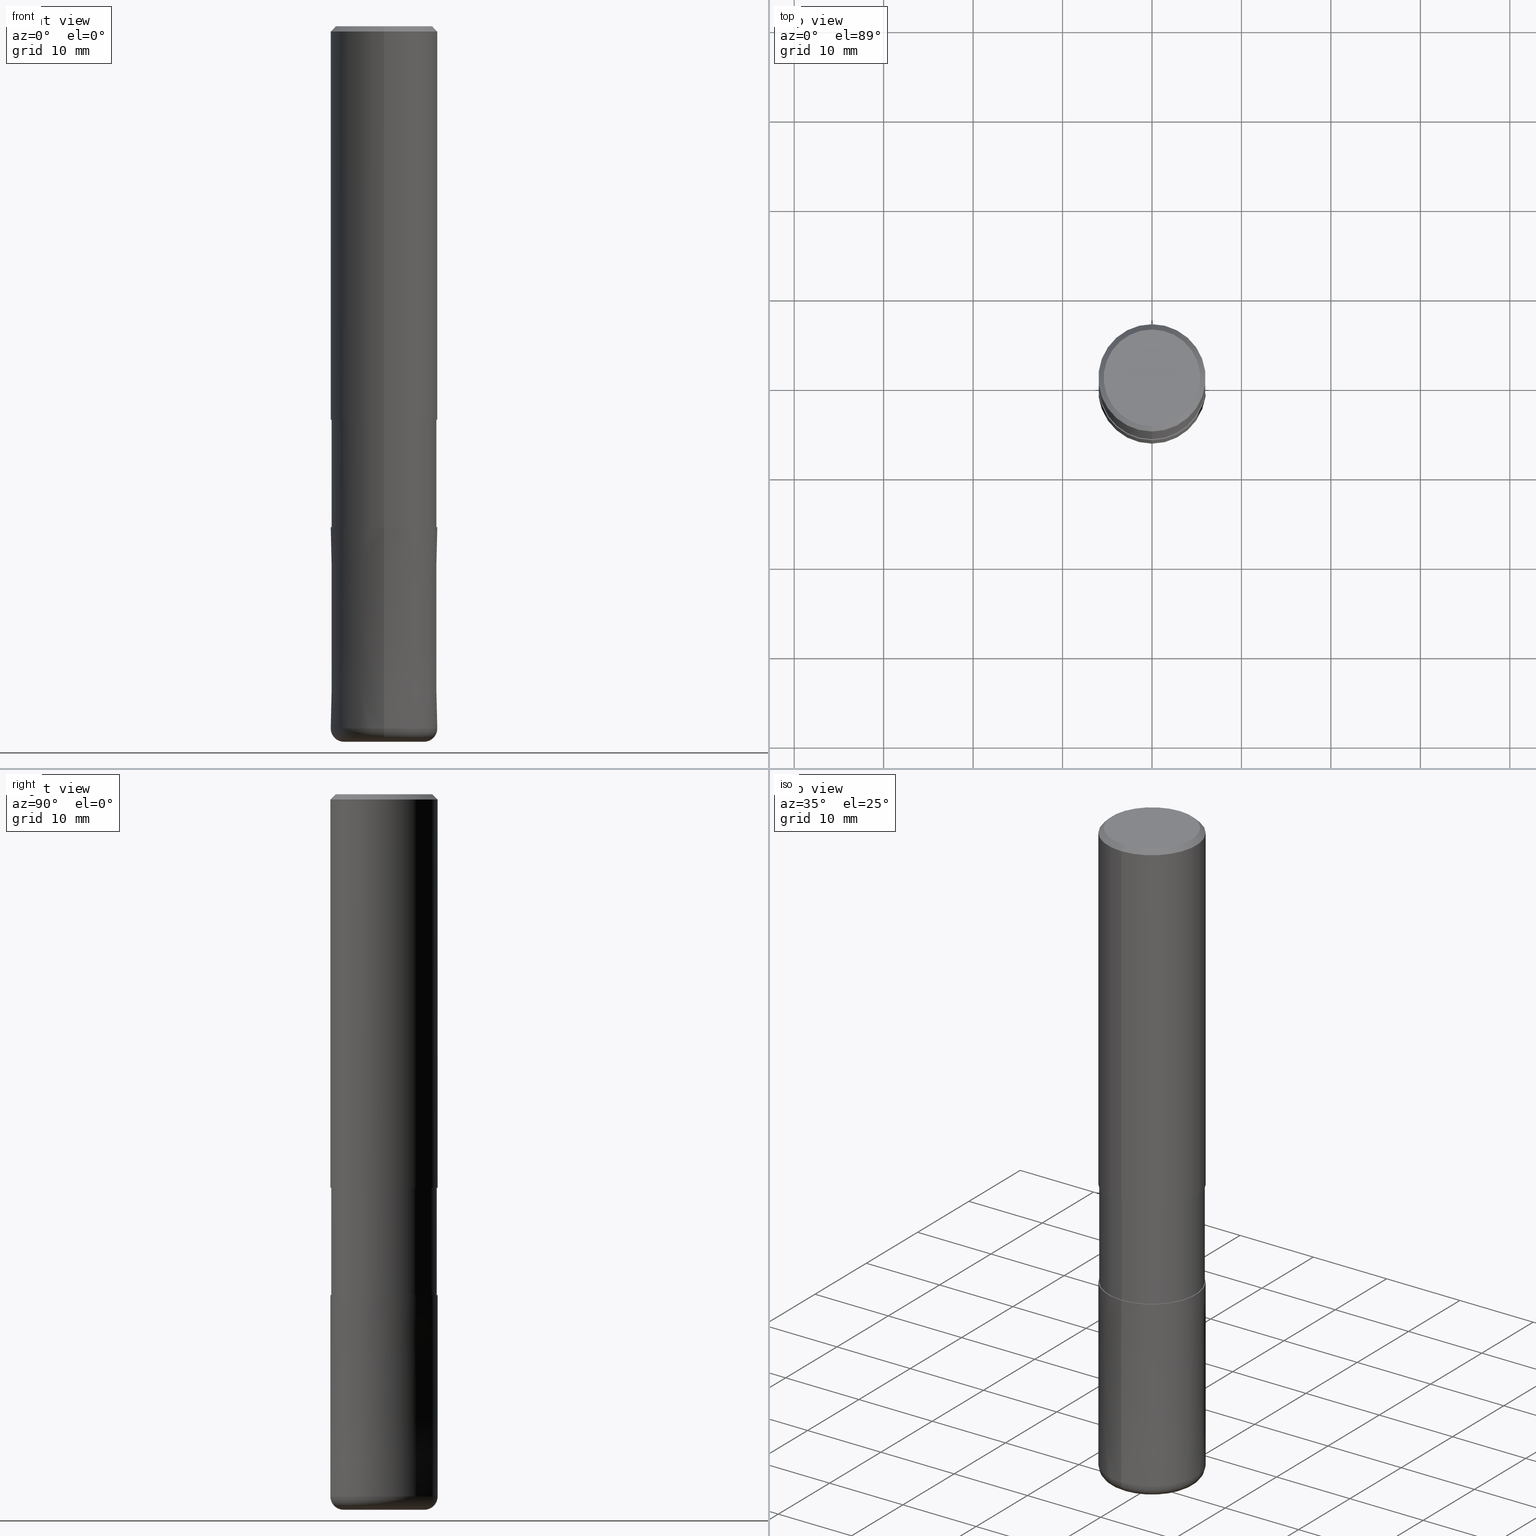
[diagram: canonical four-view strip — front | top / right | iso, engineering-drawing reading convention]
A machine part, canonical four-view strip (front | top / right | iso — engineering-drawing reading convention). The complete STEP part file that produces these views, byte-faithful:
ISO-10303-21;
HEADER;
FILE_DESCRIPTION(('no description'),'unknown implementation level');
FILE_NAME('CXLRS5120-15-36-Huellk.stp','  ',('CIMSOURCE GmbH'),('CADClick - KiM GmbH - www.kimweb.de'),'unknown preprocess','ACIS','unknown authorization');
FILE_SCHEMA(('automotive_design'));
ENDSEC;
DATA;
#1=MECHANICAL_DESIGN_GEOMETRIC_PRESENTATION_REPRESENTATION(' ',(#14,#15,#16,#17,#18,#19,#20,#21,#22,#23,#24,#25,#26,#27,#28,#29,#30,#31,#32,#33,#34,#35,#36,#37,#38,#39,#40,#41,#42,#43,#44,#45,#46,#47,#48,#49,#50,#51,#52,#53,#54,#55,#56,#57,#58,#59,#60,#61,#62,#63,#64,#65,#66,#67,#68,#69,#70,#71,#72,#73,#74,#75,#76,#77,#78,#79,#80,#81,#82,#83,#84,#85,#86,#87,#88,#89,#90,#91,#92,#93,#94,#95,#96,#97),#10);
#2=PRODUCT_DEFINITION_CONTEXT('',#98,'design');
#3=APPLICATION_PROTOCOL_DEFINITION('INTERNATIONAL STANDARD','automotive_design',1994,#98);
#4=PRODUCT_CATEGORY_RELATIONSHIP('NONE','NONE',#99,#100);
#5=SHAPE_DEFINITION_REPRESENTATION(#101,#102);
#6=PRODUCT_DEFINITION_CONTEXT('',#103,'design');
#7=APPLICATION_PROTOCOL_DEFINITION('INTERNATIONAL STANDARD','automotive_design',1994,#103);
#8=PRODUCT_CATEGORY_RELATIONSHIP('NONE','NONE',#104,#105);
#9=SHAPE_DEFINITION_REPRESENTATION(#106,#107);
#10= (GEOMETRIC_REPRESENTATION_CONTEXT(3)GLOBAL_UNCERTAINTY_ASSIGNED_CONTEXT((#110))GLOBAL_UNIT_ASSIGNED_CONTEXT((#112,#113,#114))REPRESENTATION_CONTEXT('NONE','WORKSPACE'));
#14=STYLED_ITEM('',(#116),#117);
#15=STYLED_ITEM('',(#118),#119);
#16=STYLED_ITEM('',(#120),#121);
#17=STYLED_ITEM('',(#122),#123);
#18=STYLED_ITEM('',(#124),#125);
#19=STYLED_ITEM('',(#126),#127);
#20=STYLED_ITEM('',(#128),#129);
#21=STYLED_ITEM('',(#130),#131);
#22=STYLED_ITEM('',(#132),#133);
#23=STYLED_ITEM('',(#134),#135);
#24=STYLED_ITEM('',(#136),#137);
#25=STYLED_ITEM('',(#138),#139);
#26=STYLED_ITEM('',(#140),#141);
#27=STYLED_ITEM('',(#142),#143);
#28=STYLED_ITEM('',(#144),#145);
#29=STYLED_ITEM('',(#146),#147);
#30=STYLED_ITEM('',(#148),#149);
#31=STYLED_ITEM('',(#150),#151);
#32=STYLED_ITEM('',(#152),#153);
#33=STYLED_ITEM('',(#154),#155);
#34=STYLED_ITEM('',(#156),#157);
#35=STYLED_ITEM('',(#158),#159);
#36=STYLED_ITEM('',(#160),#161);
#37=STYLED_ITEM('',(#162),#163);
#38=STYLED_ITEM('',(#164),#165);
#39=STYLED_ITEM('',(#166),#167);
#40=STYLED_ITEM('',(#168),#169);
#41=STYLED_ITEM('',(#170),#171);
#42=STYLED_ITEM('',(#172),#173);
#43=STYLED_ITEM('',(#174),#175);
#44=STYLED_ITEM('',(#176),#177);
#45=STYLED_ITEM('',(#178),#179);
#46=STYLED_ITEM('',(#180),#181);
#47=STYLED_ITEM('',(#182),#183);
#48=STYLED_ITEM('',(#184),#185);
#49=STYLED_ITEM('',(#186),#187);
#50=STYLED_ITEM('',(#188),#189);
#51=STYLED_ITEM('',(#190),#191);
#52=STYLED_ITEM('',(#192),#193);
#53=STYLED_ITEM('',(#194),#195);
#54=STYLED_ITEM('',(#196),#197);
#55=STYLED_ITEM('',(#198),#199);
#56=STYLED_ITEM('',(#200),#201);
#57=STYLED_ITEM('',(#202),#203);
#58=STYLED_ITEM('',(#204),#205);
#59=STYLED_ITEM('',(#206),#207);
#60=STYLED_ITEM('',(#208),#209);
#61=STYLED_ITEM('',(#210),#211);
#62=STYLED_ITEM('',(#212),#213);
#63=STYLED_ITEM('',(#214),#215);
#64=STYLED_ITEM('',(#216),#217);
#65=STYLED_ITEM('',(#218),#219);
#66=STYLED_ITEM('',(#220),#221);
#67=STYLED_ITEM('',(#222),#223);
#68=STYLED_ITEM('',(#224),#225);
#69=STYLED_ITEM('',(#226),#227);
#70=STYLED_ITEM('',(#228),#229);
#71=STYLED_ITEM('',(#230),#231);
#72=STYLED_ITEM('',(#232),#233);
#73=STYLED_ITEM('',(#234),#235);
#74=STYLED_ITEM('',(#236),#237);
#75=STYLED_ITEM('',(#238),#239);
#76=STYLED_ITEM('',(#240),#241);
#77=STYLED_ITEM('',(#242),#243);
#78=STYLED_ITEM('',(#244),#245);
#79=STYLED_ITEM('',(#246),#247);
#80=STYLED_ITEM('',(#248),#249);
#81=STYLED_ITEM('',(#250),#251);
#82=STYLED_ITEM('',(#252),#253);
#83=STYLED_ITEM('',(#254),#255);
#84=STYLED_ITEM('',(#256),#257);
#85=STYLED_ITEM('',(#258),#259);
#86=STYLED_ITEM('',(#260),#261);
#87=STYLED_ITEM('',(#262),#263);
#88=STYLED_ITEM('',(#264),#265);
#89=STYLED_ITEM('',(#266),#267);
#90=STYLED_ITEM('',(#268),#269);
#91=STYLED_ITEM('',(#270),#271);
#92=STYLED_ITEM('',(#272),#273);
#93=STYLED_ITEM('',(#274),#275);
#94=STYLED_ITEM('',(#276),#277);
#95=STYLED_ITEM('',(#278),#279);
#96=STYLED_ITEM('',(#280),#281);
#97=STYLED_ITEM('',(#282),#283);
#98=APPLICATION_CONTEXT(' ');
#99=PRODUCT_CATEGORY('part','NONE');
#100=PRODUCT_RELATED_PRODUCT_CATEGORY('detail',' ',(#284));
#101=PRODUCT_DEFINITION_SHAPE('NONE','NONE',#285);
#102=ADVANCED_BREP_SHAPE_REPRESENTATION('1',(#245,#286),#10);
#103=APPLICATION_CONTEXT(' ');
#104=PRODUCT_CATEGORY('part','NONE');
#105=PRODUCT_RELATED_PRODUCT_CATEGORY('detail',' ',(#287));
#106=PRODUCT_DEFINITION_SHAPE('NONE','NONE',#288);
#107=ADVANCED_BREP_SHAPE_REPRESENTATION('2',(#119,#289),#10);
#110=UNCERTAINTY_MEASURE_WITH_UNIT(LENGTH_MEASURE(1.0E-006),#112,'','');
#112= (CONVERSION_BASED_UNIT('MILLIMETRE',#292)LENGTH_UNIT()NAMED_UNIT(#295));
#113= (NAMED_UNIT(#297)PLANE_ANGLE_UNIT()SI_UNIT($,.RADIAN.));
#114= (NAMED_UNIT(#297)SOLID_ANGLE_UNIT()SI_UNIT($,.STERADIAN.));
#116=PRESENTATION_STYLE_ASSIGNMENT((#303));
#117=EDGE_CURVE('',#151,#259,#304,.T.);
#118=PRESENTATION_STYLE_ASSIGNMENT((#305));
#119=MANIFOLD_SOLID_BREP('2',#306);
#120=PRESENTATION_STYLE_ASSIGNMENT((#307));
#121=ADVANCED_FACE('',(#308),#309,.T.);
#122=PRESENTATION_STYLE_ASSIGNMENT((#310));
#123=VERTEX_POINT('',#311);
#124=PRESENTATION_STYLE_ASSIGNMENT((#312));
#125=EDGE_CURVE('',#151,#255,#313,.T.);
#126=PRESENTATION_STYLE_ASSIGNMENT((#314));
#127=ADVANCED_FACE('',(#315),#316,.T.);
#128=PRESENTATION_STYLE_ASSIGNMENT((#317));
#129=VERTEX_POINT('',#318);
#130=PRESENTATION_STYLE_ASSIGNMENT((#319));
#131=EDGE_CURVE('',#271,#241,#320,.T.);
#132=PRESENTATION_STYLE_ASSIGNMENT((#321));
#133=EDGE_CURVE('',#247,#191,#322,.T.);
#134=PRESENTATION_STYLE_ASSIGNMENT((#323));
#135=EDGE_CURVE('',#233,#129,#324,.T.);
#136=PRESENTATION_STYLE_ASSIGNMENT((#325));
#137=ADVANCED_FACE('',(#326),#327,.T.);
#138=PRESENTATION_STYLE_ASSIGNMENT((#328));
#139=VERTEX_POINT('',#329);
#140=PRESENTATION_STYLE_ASSIGNMENT((#330));
#141=EDGE_CURVE('',#231,#239,#331,.T.);
#142=PRESENTATION_STYLE_ASSIGNMENT((#332));
#143=ADVANCED_FACE('',(#333),#334,.T.);
#144=PRESENTATION_STYLE_ASSIGNMENT((#335));
#145=EDGE_CURVE('',#147,#139,#336,.T.);
#146=PRESENTATION_STYLE_ASSIGNMENT((#337));
#147=VERTEX_POINT('',#338);
#148=PRESENTATION_STYLE_ASSIGNMENT((#339));
#149=EDGE_CURVE('',#123,#147,#340,.T.);
#150=PRESENTATION_STYLE_ASSIGNMENT((#341));
#151=VERTEX_POINT('',#342);
#152=PRESENTATION_STYLE_ASSIGNMENT((#343));
#153=EDGE_CURVE('',#191,#247,#344,.T.);
#154=PRESENTATION_STYLE_ASSIGNMENT((#345));
#155=EDGE_CURVE('',#187,#189,#346,.T.);
#156=PRESENTATION_STYLE_ASSIGNMENT((#347));
#157=ADVANCED_FACE('',(#348,#349),#350,.T.);
#158=PRESENTATION_STYLE_ASSIGNMENT((#351));
#159=VERTEX_POINT('',#352);
#160=PRESENTATION_STYLE_ASSIGNMENT((#353));
#161=ADVANCED_FACE('',(#354),#355,.T.);
#162=PRESENTATION_STYLE_ASSIGNMENT((#356));
#163=ADVANCED_FACE('',(#357),#358,.T.);
#164=PRESENTATION_STYLE_ASSIGNMENT((#359));
#165=ADVANCED_FACE('',(#360),#361,.F.);
#166=PRESENTATION_STYLE_ASSIGNMENT((#362));
#167=ADVANCED_FACE('',(#363,#364),#365,.T.);
#168=PRESENTATION_STYLE_ASSIGNMENT((#366));
#169=VERTEX_POINT('',#367);
#170=PRESENTATION_STYLE_ASSIGNMENT((#368));
#171=EDGE_CURVE('',#259,#159,#369,.T.);
#172=PRESENTATION_STYLE_ASSIGNMENT((#370));
#173=ADVANCED_FACE('',(#371,#372),#373,.T.);
#174=PRESENTATION_STYLE_ASSIGNMENT((#374));
#175=EDGE_CURVE('',#147,#123,#375,.T.);
#176=PRESENTATION_STYLE_ASSIGNMENT((#376));
#177=EDGE_CURVE('',#273,#223,#377,.T.);
#178=PRESENTATION_STYLE_ASSIGNMENT((#378));
#179=EDGE_CURVE('',#233,#231,#379,.T.);
#180=PRESENTATION_STYLE_ASSIGNMENT((#380));
#181=EDGE_CURVE('',#239,#231,#381,.T.);
#182=PRESENTATION_STYLE_ASSIGNMENT((#382));
#183=EDGE_CURVE('',#223,#273,#383,.T.);
#184=PRESENTATION_STYLE_ASSIGNMENT((#384));
#185=EDGE_CURVE('',#195,#139,#385,.T.);
#186=PRESENTATION_STYLE_ASSIGNMENT((#386));
#187=VERTEX_POINT('',#387);
#188=PRESENTATION_STYLE_ASSIGNMENT((#388));
#189=VERTEX_POINT('',#389);
#190=PRESENTATION_STYLE_ASSIGNMENT((#390));
#191=VERTEX_POINT('',#391);
#192=PRESENTATION_STYLE_ASSIGNMENT((#392));
#193=EDGE_CURVE('',#241,#271,#393,.T.);
#194=PRESENTATION_STYLE_ASSIGNMENT((#394));
#195=VERTEX_POINT('',#395);
#196=PRESENTATION_STYLE_ASSIGNMENT((#396));
#197=EDGE_CURVE('',#129,#233,#397,.T.);
#198=PRESENTATION_STYLE_ASSIGNMENT((#398));
#199=ADVANCED_FACE('',(#399),#400,.T.);
#200=PRESENTATION_STYLE_ASSIGNMENT((#401));
#201=EDGE_CURVE('',#239,#129,#402,.T.);
#202=PRESENTATION_STYLE_ASSIGNMENT((#403));
#203=ADVANCED_FACE('',(#404),#405,.T.);
#204=PRESENTATION_STYLE_ASSIGNMENT((#406));
#205=ADVANCED_FACE('',(#407),#408,.F.);
#206=PRESENTATION_STYLE_ASSIGNMENT((#409));
#207=ADVANCED_FACE('',(#410),#411,.T.);
#208=PRESENTATION_STYLE_ASSIGNMENT((#412));
#209=EDGE_CURVE('',#189,#187,#413,.T.);
#210=PRESENTATION_STYLE_ASSIGNMENT((#414));
#211=EDGE_CURVE('',#189,#259,#415,.T.);
#212=PRESENTATION_STYLE_ASSIGNMENT((#416));
#213=EDGE_CURVE('',#159,#255,#417,.T.);
#214=PRESENTATION_STYLE_ASSIGNMENT((#418));
#215=VERTEX_POINT('',#419);
#216=PRESENTATION_STYLE_ASSIGNMENT((#420));
#217=ADVANCED_FACE('',(#421),#422,.T.);
#218=PRESENTATION_STYLE_ASSIGNMENT((#423));
#219=EDGE_CURVE('',#283,#249,#424,.T.);
#220=PRESENTATION_STYLE_ASSIGNMENT((#425));
#221=EDGE_CURVE('',#159,#187,#426,.T.);
#222=PRESENTATION_STYLE_ASSIGNMENT((#427));
#223=VERTEX_POINT('',#428);
#224=PRESENTATION_STYLE_ASSIGNMENT((#429));
#225=ADVANCED_FACE('',(#430),#431,.T.);
#226=PRESENTATION_STYLE_ASSIGNMENT((#432));
#227=EDGE_CURVE('',#195,#123,#433,.T.);
#228=PRESENTATION_STYLE_ASSIGNMENT((#434));
#229=EDGE_CURVE('',#159,#259,#435,.T.);
#230=PRESENTATION_STYLE_ASSIGNMENT((#436));
#231=VERTEX_POINT('',#437);
#232=PRESENTATION_STYLE_ASSIGNMENT((#438));
#233=VERTEX_POINT('',#439);
#234=PRESENTATION_STYLE_ASSIGNMENT((#440));
#235=EDGE_CURVE('',#271,#239,#441,.T.);
#236=PRESENTATION_STYLE_ASSIGNMENT((#442));
#237=EDGE_CURVE('',#169,#215,#443,.T.);
#238=PRESENTATION_STYLE_ASSIGNMENT((#444));
#239=VERTEX_POINT('',#445);
#240=PRESENTATION_STYLE_ASSIGNMENT((#446));
#241=VERTEX_POINT('',#447);
#242=PRESENTATION_STYLE_ASSIGNMENT((#448));
#243=EDGE_CURVE('',#215,#169,#449,.T.);
#244=PRESENTATION_STYLE_ASSIGNMENT((#450));
#245=MANIFOLD_SOLID_BREP('1',#451);
#246=PRESENTATION_STYLE_ASSIGNMENT((#452));
#247=VERTEX_POINT('',#453);
#248=PRESENTATION_STYLE_ASSIGNMENT((#454));
#249=VERTEX_POINT('',#455);
#250=PRESENTATION_STYLE_ASSIGNMENT((#456));
#251=EDGE_CURVE('',#215,#223,#457,.T.);
#252=PRESENTATION_STYLE_ASSIGNMENT((#458));
#253=EDGE_CURVE('',#249,#247,#459,.T.);
#254=PRESENTATION_STYLE_ASSIGNMENT((#460));
#255=VERTEX_POINT('',#461);
#256=PRESENTATION_STYLE_ASSIGNMENT((#462));
#257=EDGE_CURVE('',#139,#195,#463,.T.);
#258=PRESENTATION_STYLE_ASSIGNMENT((#464));
#259=VERTEX_POINT('',#465);
#260=PRESENTATION_STYLE_ASSIGNMENT((#466));
#261=EDGE_CURVE('',#231,#241,#467,.T.);
#262=PRESENTATION_STYLE_ASSIGNMENT((#468));
#263=ADVANCED_FACE('',(#469),#470,.T.);
#264=PRESENTATION_STYLE_ASSIGNMENT((#471));
#265=EDGE_CURVE('',#255,#151,#472,.T.);
#266=PRESENTATION_STYLE_ASSIGNMENT((#473));
#267=EDGE_CURVE('',#249,#283,#474,.T.);
#268=PRESENTATION_STYLE_ASSIGNMENT((#475));
#269=ADVANCED_FACE('',(#476),#477,.T.);
#270=PRESENTATION_STYLE_ASSIGNMENT((#478));
#271=VERTEX_POINT('',#479);
#272=PRESENTATION_STYLE_ASSIGNMENT((#480));
#273=VERTEX_POINT('',#481);
#274=PRESENTATION_STYLE_ASSIGNMENT((#482));
#275=EDGE_CURVE('',#273,#169,#483,.T.);
#276=PRESENTATION_STYLE_ASSIGNMENT((#484));
#277=ADVANCED_FACE('',(#485,#486),#487,.T.);
#278=PRESENTATION_STYLE_ASSIGNMENT((#488));
#279=EDGE_CURVE('',#191,#283,#489,.T.);
#280=PRESENTATION_STYLE_ASSIGNMENT((#490));
#281=ADVANCED_FACE('',(#491),#492,.T.);
#282=PRESENTATION_STYLE_ASSIGNMENT((#493));
#283=VERTEX_POINT('',#494);
#284=PRODUCT('1','1','PART-1-DESC',(#495));
#285=PRODUCT_DEFINITION('NONE','NONE',#496,#2);
#286=AXIS2_PLACEMENT_3D('',#497,#498,#499);
#287=PRODUCT('2','2','PART-2-DESC',(#500));
#288=PRODUCT_DEFINITION('NONE','NONE',#501,#6);
#289=AXIS2_PLACEMENT_3D('',#502,#503,#504);
#292=LENGTH_MEASURE_WITH_UNIT(LENGTH_MEASURE(1.0),#505);
#295=DIMENSIONAL_EXPONENTS(1.0,0.0,0.0,0.0,0.0,0.0,0.0);
#297=DIMENSIONAL_EXPONENTS(0.0,0.0,0.0,0.0,0.0,0.0,0.0);
#303=CURVE_STYLE('',#506,POSITIVE_LENGTH_MEASURE(1.0E-006),#507);
#304=CIRCLE('',#508,1.5);
#305=SURFACE_STYLE_USAGE(.BOTH.,#509);
#306=CLOSED_SHELL('',(#165,#217,#203,#167,#225,#199,#157,#205));
#307=SURFACE_STYLE_USAGE(.BOTH.,#510);
#308=FACE_OUTER_BOUND('',#511,.T.);
#309=CONICAL_SURFACE('',#512,5.7,0.785398163397447);
#310=POINT_STYLE(' ',#513,POSITIVE_LENGTH_MEASURE(1.0E-006),#514);
#311=CARTESIAN_POINT('',(7.22511625723433E-016,-5.89995,-44.0));
#312=CURVE_STYLE('',#515,POSITIVE_LENGTH_MEASURE(1.0E-006),#516);
#313=CIRCLE('',#517,4.5);
#314=SURFACE_STYLE_USAGE(.BOTH.,#518);
#315=FACE_OUTER_BOUND('',#519,.T.);
#316=CYLINDRICAL_SURFACE('',#520,2.7);
#317=POINT_STYLE(' ',#521,POSITIVE_LENGTH_MEASURE(1.0E-006),#522);
#318=CARTESIAN_POINT('',(6.61287431064084E-016,-5.4,0.0));
#319=CURVE_STYLE('',#523,POSITIVE_LENGTH_MEASURE(1.0E-006),#524);
#320=CIRCLE('',#525,6.0);
#321=CURVE_STYLE('',#526,POSITIVE_LENGTH_MEASURE(1.0E-006),#527);
#322=CIRCLE('',#528,2.7);
#323=CURVE_STYLE('',#529,POSITIVE_LENGTH_MEASURE(1.0E-006),#530);
#324=CIRCLE('',#531,5.4);
#325=SURFACE_STYLE_USAGE(.BOTH.,#532);
#326=FACE_OUTER_BOUND('',#533,.T.);
#327=PLANE('',#534);
#328=POINT_STYLE(' ',#535,POSITIVE_LENGTH_MEASURE(1.0E-006),#536);
#329=CARTESIAN_POINT('',(0.0,5.89995,-56.0));
#330=CURVE_STYLE('',#537,POSITIVE_LENGTH_MEASURE(1.0E-006),#538);
#331=CIRCLE('',#539,6.0);
#332=SURFACE_STYLE_USAGE(.BOTH.,#540);
#333=FACE_OUTER_BOUND('',#541,.T.);
#334=CYLINDRICAL_SURFACE('',#542,5.89995);
#335=CURVE_STYLE('',#543,POSITIVE_LENGTH_MEASURE(1.0E-006),#544);
#336=LINE('',#545,#546);
#337=POINT_STYLE(' ',#547,POSITIVE_LENGTH_MEASURE(1.0E-006),#548);
#338=CARTESIAN_POINT('',(0.0,5.89995,-44.0));
#339=CURVE_STYLE('',#549,POSITIVE_LENGTH_MEASURE(1.0E-006),#550);
#340=CIRCLE('',#551,5.89995);
#341=POINT_STYLE(' ',#552,POSITIVE_LENGTH_MEASURE(1.0E-006),#553);
#342=CARTESIAN_POINT('',(0.0,4.5,-80.0));
#343=CURVE_STYLE('',#554,POSITIVE_LENGTH_MEASURE(1.0E-006),#555);
#344=CIRCLE('',#556,2.7);
#345=CURVE_STYLE('',#557,POSITIVE_LENGTH_MEASURE(1.0E-006),#558);
#346=CIRCLE('',#559,5.9999);
#347=SURFACE_STYLE_USAGE(.BOTH.,#560);
#348=FACE_BOUND('',#561,.T.);
#349=FACE_OUTER_BOUND('',#562,.T.);
#350=PLANE('',#563);
#351=POINT_STYLE(' ',#564,POSITIVE_LENGTH_MEASURE(1.0E-006),#565);
#352=CARTESIAN_POINT('',(7.34763812293426E-016,-6.0,-78.5));
#353=SURFACE_STYLE_USAGE(.BOTH.,#566);
#354=FACE_OUTER_BOUND('',#567,.T.);
#355=CONICAL_SURFACE('',#568,5.7,0.785398163397447);
#356=SURFACE_STYLE_USAGE(.BOTH.,#569);
#357=FACE_OUTER_BOUND('',#570,.T.);
#358=CYLINDRICAL_SURFACE('',#571,2.7);
#359=SURFACE_STYLE_USAGE(.BOTH.,#572);
#360=FACE_OUTER_BOUND('',#573,.T.);
#361=CYLINDRICAL_SURFACE('',#574,2.7);
#362=SURFACE_STYLE_USAGE(.BOTH.,#575);
#363=FACE_OUTER_BOUND('',#576,.T.);
#364=FACE_BOUND('',#577,.T.);
#365=PLANE('',#578);
#366=POINT_STYLE(' ',#579,POSITIVE_LENGTH_MEASURE(1.0E-006),#580);
#367=CARTESIAN_POINT('',(0.0,2.7,-79.76));
#368=CURVE_STYLE('',#581,POSITIVE_LENGTH_MEASURE(1.0E-006),#582);
#369=CIRCLE('',#583,6.0);
#370=SURFACE_STYLE_USAGE(.BOTH.,#584);
#371=FACE_BOUND('',#585,.T.);
#372=FACE_OUTER_BOUND('',#586,.T.);
#373=PLANE('',#587);
#374=CURVE_STYLE('',#588,POSITIVE_LENGTH_MEASURE(1.0E-006),#589);
#375=CIRCLE('',#590,5.89995);
#376=CURVE_STYLE('',#591,POSITIVE_LENGTH_MEASURE(1.0E-006),#592);
#377=CIRCLE('',#593,2.7);
#378=CURVE_STYLE('',#594,POSITIVE_LENGTH_MEASURE(1.0E-006),#595);
#379=LINE('',#596,#597);
#380=CURVE_STYLE('',#598,POSITIVE_LENGTH_MEASURE(1.0E-006),#599);
#381=CIRCLE('',#600,6.0);
#382=CURVE_STYLE('',#601,POSITIVE_LENGTH_MEASURE(1.0E-006),#602);
#383=CIRCLE('',#603,2.7);
#384=CURVE_STYLE('',#604,POSITIVE_LENGTH_MEASURE(1.0E-006),#605);
#385=CIRCLE('',#606,5.89995);
#386=POINT_STYLE(' ',#607,POSITIVE_LENGTH_MEASURE(1.0E-006),#608);
#387=CARTESIAN_POINT('',(7.34751566229888E-016,-5.9999,-56.0));
#388=POINT_STYLE(' ',#609,POSITIVE_LENGTH_MEASURE(1.0E-006),#610);
#389=CARTESIAN_POINT('',(0.0,5.9999,-56.0));
#390=POINT_STYLE(' ',#611,POSITIVE_LENGTH_MEASURE(1.0E-006),#612);
#391=CARTESIAN_POINT('',(0.0,2.7,-56.0));
#392=CURVE_STYLE('',#613,POSITIVE_LENGTH_MEASURE(1.0E-006),#614);
#393=CIRCLE('',#615,6.0);
#394=POINT_STYLE(' ',#616,POSITIVE_LENGTH_MEASURE(1.0E-006),#617);
#395=CARTESIAN_POINT('',(7.22511625723433E-016,-5.89995,-56.0));
#396=CURVE_STYLE('',#618,POSITIVE_LENGTH_MEASURE(1.0E-006),#619);
#397=CIRCLE('',#620,5.4);
#398=SURFACE_STYLE_USAGE(.BOTH.,#621);
#399=FACE_OUTER_BOUND('',#622,.T.);
#400=TOROIDAL_SURFACE('',#623,4.5,1.5);
#401=CURVE_STYLE('',#624,POSITIVE_LENGTH_MEASURE(1.0E-006),#625);
#402=LINE('',#626,#627);
#403=SURFACE_STYLE_USAGE(.BOTH.,#628);
#404=FACE_OUTER_BOUND('',#629,.T.);
#405=CONICAL_SURFACE('',#630,5.99995,4.44444444440482E-006);
#406=SURFACE_STYLE_USAGE(.BOTH.,#631);
#407=FACE_OUTER_BOUND('',#632,.T.);
#408=CYLINDRICAL_SURFACE('',#633,2.7);
#409=SURFACE_STYLE_USAGE(.BOTH.,#634);
#410=FACE_OUTER_BOUND('',#635,.T.);
#411=PLANE('',#636);
#412=CURVE_STYLE('',#637,POSITIVE_LENGTH_MEASURE(1.0E-006),#638);
#413=CIRCLE('',#639,5.9999);
#414=CURVE_STYLE('',#640,POSITIVE_LENGTH_MEASURE(1.0E-006),#641);
#415=LINE('',#642,#643);
#416=CURVE_STYLE('',#644,POSITIVE_LENGTH_MEASURE(1.0E-006),#645);
#417=CIRCLE('',#646,1.5);
#418=POINT_STYLE(' ',#647,POSITIVE_LENGTH_MEASURE(1.0E-006),#648);
#419=CARTESIAN_POINT('',(3.30643715532042E-016,-2.7,-79.76));
#420=SURFACE_STYLE_USAGE(.BOTH.,#649);
#421=FACE_OUTER_BOUND('',#650,.T.);
#422=TOROIDAL_SURFACE('',#651,4.5,1.5);
#423=CURVE_STYLE('',#652,POSITIVE_LENGTH_MEASURE(1.0E-006),#653);
#424=CIRCLE('',#654,2.7);
#425=CURVE_STYLE('',#655,POSITIVE_LENGTH_MEASURE(1.0E-006),#656);
#426=LINE('',#657,#658);
#427=POINT_STYLE(' ',#659,POSITIVE_LENGTH_MEASURE(1.0E-006),#660);
#428=CARTESIAN_POINT('',(3.30643715532042E-016,-2.7,-56.0));
#429=SURFACE_STYLE_USAGE(.BOTH.,#661);
#430=FACE_OUTER_BOUND('',#662,.T.);
#431=CONICAL_SURFACE('',#663,5.99995,4.44444444440482E-006);
#432=CURVE_STYLE('',#664,POSITIVE_LENGTH_MEASURE(1.0E-006),#665);
#433=LINE('',#666,#667);
#434=CURVE_STYLE('',#668,POSITIVE_LENGTH_MEASURE(1.0E-006),#669);
#435=CIRCLE('',#670,6.0);
#436=POINT_STYLE(' ',#671,POSITIVE_LENGTH_MEASURE(1.0E-006),#672);
#437=CARTESIAN_POINT('',(0.0,6.0,-0.600000000000001));
#438=POINT_STYLE(' ',#673,POSITIVE_LENGTH_MEASURE(1.0E-006),#674);
#439=CARTESIAN_POINT('',(0.0,5.4,0.0));
#440=CURVE_STYLE('',#675,POSITIVE_LENGTH_MEASURE(1.0E-006),#676);
#441=LINE('',#677,#678);
#442=CURVE_STYLE('',#679,POSITIVE_LENGTH_MEASURE(1.0E-006),#680);
#443=CIRCLE('',#681,2.7);
#444=POINT_STYLE(' ',#682,POSITIVE_LENGTH_MEASURE(1.0E-006),#683);
#445=CARTESIAN_POINT('',(7.34763812293426E-016,-6.0,-0.600000000000001));
#446=POINT_STYLE(' ',#684,POSITIVE_LENGTH_MEASURE(1.0E-006),#685);
#447=CARTESIAN_POINT('',(0.0,6.0,-44.0));
#448=CURVE_STYLE('',#686,POSITIVE_LENGTH_MEASURE(1.0E-006),#687);
#449=CIRCLE('',#688,2.7);
#450=SURFACE_STYLE_USAGE(.BOTH.,#689);
#451=CLOSED_SHELL('',(#163,#143,#263,#121,#277,#207,#161,#281,#269,#173,#127,#137));
#452=POINT_STYLE(' ',#690,POSITIVE_LENGTH_MEASURE(1.0E-006),#691);
#453=CARTESIAN_POINT('',(3.30643715532042E-016,-2.7,-56.0));
#454=POINT_STYLE(' ',#692,POSITIVE_LENGTH_MEASURE(1.0E-006),#693);
#455=CARTESIAN_POINT('',(3.30643715532042E-016,-2.7,-80.0));
#456=CURVE_STYLE('',#694,POSITIVE_LENGTH_MEASURE(1.0E-006),#695);
#457=LINE('',#696,#697);
#458=CURVE_STYLE('',#698,POSITIVE_LENGTH_MEASURE(1.0E-006),#699);
#459=LINE('',#700,#701);
#460=POINT_STYLE(' ',#702,POSITIVE_LENGTH_MEASURE(1.0E-006),#703);
#461=CARTESIAN_POINT('',(5.5107285922007E-016,-4.5,-80.0));
#462=CURVE_STYLE('',#704,POSITIVE_LENGTH_MEASURE(1.0E-006),#705);
#463=CIRCLE('',#706,5.89995);
#464=POINT_STYLE(' ',#707,POSITIVE_LENGTH_MEASURE(1.0E-006),#708);
#465=CARTESIAN_POINT('',(0.0,6.0,-78.5));
#466=CURVE_STYLE('',#709,POSITIVE_LENGTH_MEASURE(1.0E-006),#710);
#467=LINE('',#711,#712);
#468=SURFACE_STYLE_USAGE(.BOTH.,#713);
#469=FACE_OUTER_BOUND('',#714,.T.);
#470=CYLINDRICAL_SURFACE('',#715,6.0);
#471=CURVE_STYLE('',#716,POSITIVE_LENGTH_MEASURE(1.0E-006),#717);
#472=CIRCLE('',#718,4.5);
#473=CURVE_STYLE('',#719,POSITIVE_LENGTH_MEASURE(1.0E-006),#720);
#474=CIRCLE('',#721,2.7);
#475=SURFACE_STYLE_USAGE(.BOTH.,#722);
#476=FACE_OUTER_BOUND('',#723,.T.);
#477=CYLINDRICAL_SURFACE('',#724,5.89995);
#478=POINT_STYLE(' ',#725,POSITIVE_LENGTH_MEASURE(1.0E-006),#726);
#479=CARTESIAN_POINT('',(7.34763812293426E-016,-6.0,-44.0));
#480=POINT_STYLE(' ',#727,POSITIVE_LENGTH_MEASURE(1.0E-006),#728);
#481=CARTESIAN_POINT('',(0.0,2.7,-56.0));
#482=CURVE_STYLE('',#729,POSITIVE_LENGTH_MEASURE(1.0E-006),#730);
#483=LINE('',#731,#732);
#484=SURFACE_STYLE_USAGE(.BOTH.,#733);
#485=FACE_OUTER_BOUND('',#734,.T.);
#486=FACE_BOUND('',#735,.T.);
#487=PLANE('',#736);
#488=CURVE_STYLE('',#737,POSITIVE_LENGTH_MEASURE(1.0E-006),#738);
#489=LINE('',#739,#740);
#490=SURFACE_STYLE_USAGE(.BOTH.,#741);
#491=FACE_OUTER_BOUND('',#742,.T.);
#492=CYLINDRICAL_SURFACE('',#743,6.0);
#493=POINT_STYLE(' ',#744,POSITIVE_LENGTH_MEASURE(1.0E-006),#745);
#494=CARTESIAN_POINT('',(0.0,2.7,-80.0));
#495=PRODUCT_CONTEXT('',#98,'mechanical');
#496=PRODUCT_DEFINITION_FORMATION_WITH_SPECIFIED_SOURCE(' ','NONE',#284,.NOT_KNOWN.);
#497=CARTESIAN_POINT('',(0.0,0.0,0.0));
#498=DIRECTION('',(0.0,0.0,1.0));
#499=DIRECTION('',(1.0,0.0,0.0));
#500=PRODUCT_CONTEXT('',#103,'mechanical');
#501=PRODUCT_DEFINITION_FORMATION_WITH_SPECIFIED_SOURCE(' ','NONE',#287,.NOT_KNOWN.);
#502=CARTESIAN_POINT('',(0.0,0.0,0.0));
#503=DIRECTION('',(0.0,0.0,1.0));
#504=DIRECTION('',(1.0,0.0,0.0));
#505= (NAMED_UNIT(#295)LENGTH_UNIT()SI_UNIT(.MILLI.,.METRE.));
#506=DRAUGHTING_PRE_DEFINED_CURVE_FONT('continuous');
#507=COLOUR_RGB('',0.800000011920929,0.800000011920929,0.800000011920929);
#508=AXIS2_PLACEMENT_3D('',#747,#748,#749);
#509=SURFACE_SIDE_STYLE('',(#750));
#510=SURFACE_SIDE_STYLE('',(#751));
#511=EDGE_LOOP('',(#752,#753,#754,#755));
#512=AXIS2_PLACEMENT_3D('',#756,#757,#758);
#513=PRE_DEFINED_MARKER('');
#514=COLOUR_RGB('',0.498039215803146,0.498039215803146,0.498039215803146);
#515=DRAUGHTING_PRE_DEFINED_CURVE_FONT('continuous');
#516=COLOUR_RGB('',0.800000011920929,0.800000011920929,0.800000011920929);
#517=AXIS2_PLACEMENT_3D('',#759,#760,#761);
#518=SURFACE_SIDE_STYLE('',(#762));
#519=EDGE_LOOP('',(#763,#764,#765,#766));
#520=AXIS2_PLACEMENT_3D('',#767,#768,#769);
#521=PRE_DEFINED_MARKER('');
#522=COLOUR_RGB('',0.498039215803146,0.498039215803146,0.498039215803146);
#523=DRAUGHTING_PRE_DEFINED_CURVE_FONT('continuous');
#524=COLOUR_RGB('',0.498039215803146,0.498039215803146,0.498039215803146);
#525=AXIS2_PLACEMENT_3D('',#770,#771,#772);
#526=DRAUGHTING_PRE_DEFINED_CURVE_FONT('continuous');
#527=COLOUR_RGB('',0.800000011920929,0.800000011920929,0.800000011920929);
#528=AXIS2_PLACEMENT_3D('',#773,#774,#775);
#529=DRAUGHTING_PRE_DEFINED_CURVE_FONT('continuous');
#530=COLOUR_RGB('',0.498039215803146,0.498039215803146,0.498039215803146);
#531=AXIS2_PLACEMENT_3D('',#776,#777,#778);
#532=SURFACE_SIDE_STYLE('',(#779));
#533=EDGE_LOOP('',(#780,#781));
#534=AXIS2_PLACEMENT_3D('',#782,#783,#784);
#535=PRE_DEFINED_MARKER('');
#536=COLOUR_RGB('',0.498039215803146,0.498039215803146,0.498039215803146);
#537=DRAUGHTING_PRE_DEFINED_CURVE_FONT('continuous');
#538=COLOUR_RGB('',0.498039215803146,0.498039215803146,0.498039215803146);
#539=AXIS2_PLACEMENT_3D('',#785,#786,#787);
#540=SURFACE_SIDE_STYLE('',(#788));
#541=EDGE_LOOP('',(#789,#790,#791,#792));
#542=AXIS2_PLACEMENT_3D('',#793,#794,#795);
#543=DRAUGHTING_PRE_DEFINED_CURVE_FONT('continuous');
#544=COLOUR_RGB('',0.498039215803146,0.498039215803146,0.498039215803146);
#545=CARTESIAN_POINT('',(-7.22511625723433E-016,5.89995,-50.0));
#546=VECTOR('',#796,1.0);
#547=PRE_DEFINED_MARKER('');
#548=COLOUR_RGB('',0.498039215803146,0.498039215803146,0.498039215803146);
#549=DRAUGHTING_PRE_DEFINED_CURVE_FONT('continuous');
#550=COLOUR_RGB('',0.498039215803146,0.498039215803146,0.498039215803146);
#551=AXIS2_PLACEMENT_3D('',#797,#798,#799);
#552=PRE_DEFINED_MARKER('');
#553=COLOUR_RGB('',0.800000011920929,0.800000011920929,0.800000011920929);
#554=DRAUGHTING_PRE_DEFINED_CURVE_FONT('continuous');
#555=COLOUR_RGB('',0.800000011920929,0.800000011920929,0.800000011920929);
#556=AXIS2_PLACEMENT_3D('',#800,#801,#802);
#557=DRAUGHTING_PRE_DEFINED_CURVE_FONT('continuous');
#558=COLOUR_RGB('',0.800000011920929,0.800000011920929,0.800000011920929);
#559=AXIS2_PLACEMENT_3D('',#803,#804,#805);
#560=SURFACE_SIDE_STYLE('',(#806));
#561=EDGE_LOOP('',(#807,#808));
#562=EDGE_LOOP('',(#809,#810));
#563=AXIS2_PLACEMENT_3D('',#811,#812,#813);
#564=PRE_DEFINED_MARKER('');
#565=COLOUR_RGB('',0.800000011920929,0.800000011920929,0.800000011920929);
#566=SURFACE_SIDE_STYLE('',(#814));
#567=EDGE_LOOP('',(#815,#816,#817,#818));
#568=AXIS2_PLACEMENT_3D('',#819,#820,#821);
#569=SURFACE_SIDE_STYLE('',(#822));
#570=EDGE_LOOP('',(#823,#824,#825,#826));
#571=AXIS2_PLACEMENT_3D('',#827,#828,#829);
#572=SURFACE_SIDE_STYLE('',(#830));
#573=EDGE_LOOP('',(#831,#832,#833,#834));
#574=AXIS2_PLACEMENT_3D('',#835,#836,#837);
#575=SURFACE_SIDE_STYLE('',(#838));
#576=EDGE_LOOP('',(#839,#840));
#577=EDGE_LOOP('',(#841,#842));
#578=AXIS2_PLACEMENT_3D('',#843,#844,#845);
#579=PRE_DEFINED_MARKER('');
#580=COLOUR_RGB('',0.498039215803146,0.498039215803146,0.498039215803146);
#581=DRAUGHTING_PRE_DEFINED_CURVE_FONT('continuous');
#582=COLOUR_RGB('',0.800000011920929,0.800000011920929,0.800000011920929);
#583=AXIS2_PLACEMENT_3D('',#846,#847,#848);
#584=SURFACE_SIDE_STYLE('',(#849));
#585=EDGE_LOOP('',(#850,#851));
#586=EDGE_LOOP('',(#852,#853));
#587=AXIS2_PLACEMENT_3D('',#854,#855,#856);
#588=DRAUGHTING_PRE_DEFINED_CURVE_FONT('continuous');
#589=COLOUR_RGB('',0.498039215803146,0.498039215803146,0.498039215803146);
#590=AXIS2_PLACEMENT_3D('',#857,#858,#859);
#591=DRAUGHTING_PRE_DEFINED_CURVE_FONT('continuous');
#592=COLOUR_RGB('',0.498039215803146,0.498039215803146,0.498039215803146);
#593=AXIS2_PLACEMENT_3D('',#860,#861,#862);
#594=DRAUGHTING_PRE_DEFINED_CURVE_FONT('continuous');
#595=COLOUR_RGB('',0.498039215803146,0.498039215803146,0.498039215803146);
#596=CARTESIAN_POINT('',(-6.98025621678755E-016,5.7,-0.299999999999997));
#597=VECTOR('',#863,1.0);
#598=DRAUGHTING_PRE_DEFINED_CURVE_FONT('continuous');
#599=COLOUR_RGB('',0.498039215803146,0.498039215803146,0.498039215803146);
#600=AXIS2_PLACEMENT_3D('',#864,#865,#866);
#601=DRAUGHTING_PRE_DEFINED_CURVE_FONT('continuous');
#602=COLOUR_RGB('',0.498039215803146,0.498039215803146,0.498039215803146);
#603=AXIS2_PLACEMENT_3D('',#867,#868,#869);
#604=DRAUGHTING_PRE_DEFINED_CURVE_FONT('continuous');
#605=COLOUR_RGB('',0.498039215803146,0.498039215803146,0.498039215803146);
#606=AXIS2_PLACEMENT_3D('',#870,#871,#872);
#607=PRE_DEFINED_MARKER('');
#608=COLOUR_RGB('',0.800000011920929,0.800000011920929,0.800000011920929);
#609=PRE_DEFINED_MARKER('');
#610=COLOUR_RGB('',0.800000011920929,0.800000011920929,0.800000011920929);
#611=PRE_DEFINED_MARKER('');
#612=COLOUR_RGB('',0.800000011920929,0.800000011920929,0.800000011920929);
#613=DRAUGHTING_PRE_DEFINED_CURVE_FONT('continuous');
#614=COLOUR_RGB('',0.498039215803146,0.498039215803146,0.498039215803146);
#615=AXIS2_PLACEMENT_3D('',#873,#874,#875);
#616=PRE_DEFINED_MARKER('');
#617=COLOUR_RGB('',0.498039215803146,0.498039215803146,0.498039215803146);
#618=DRAUGHTING_PRE_DEFINED_CURVE_FONT('continuous');
#619=COLOUR_RGB('',0.498039215803146,0.498039215803146,0.498039215803146);
#620=AXIS2_PLACEMENT_3D('',#876,#877,#878);
#621=SURFACE_SIDE_STYLE('',(#879));
#622=EDGE_LOOP('',(#880,#881,#882,#883));
#623=AXIS2_PLACEMENT_3D('',#884,#885,#886);
#624=DRAUGHTING_PRE_DEFINED_CURVE_FONT('continuous');
#625=COLOUR_RGB('',0.498039215803146,0.498039215803146,0.498039215803146);
#626=CARTESIAN_POINT('',(6.98025621678755E-016,-5.7,-0.299999999999997));
#627=VECTOR('',#887,1.0);
#628=SURFACE_SIDE_STYLE('',(#888));
#629=EDGE_LOOP('',(#889,#890,#891,#892));
#630=AXIS2_PLACEMENT_3D('',#893,#894,#895);
#631=SURFACE_SIDE_STYLE('',(#896));
#632=EDGE_LOOP('',(#897,#898,#899,#900));
#633=AXIS2_PLACEMENT_3D('',#901,#902,#903);
#634=SURFACE_SIDE_STYLE('',(#904));
#635=EDGE_LOOP('',(#905,#906));
#636=AXIS2_PLACEMENT_3D('',#907,#908,#909);
#637=DRAUGHTING_PRE_DEFINED_CURVE_FONT('continuous');
#638=COLOUR_RGB('',0.800000011920929,0.800000011920929,0.800000011920929);
#639=AXIS2_PLACEMENT_3D('',#910,#911,#912);
#640=DRAUGHTING_PRE_DEFINED_CURVE_FONT('continuous');
#641=COLOUR_RGB('',0.800000011920929,0.800000011920929,0.800000011920929);
#642=CARTESIAN_POINT('',(-7.34757689261657E-016,5.99995,-67.25));
#643=VECTOR('',#913,1.0);
#644=DRAUGHTING_PRE_DEFINED_CURVE_FONT('continuous');
#645=COLOUR_RGB('',0.800000011920929,0.800000011920929,0.800000011920929);
#646=AXIS2_PLACEMENT_3D('',#914,#915,#916);
#647=PRE_DEFINED_MARKER('');
#648=COLOUR_RGB('',0.498039215803146,0.498039215803146,0.498039215803146);
#649=SURFACE_SIDE_STYLE('',(#917));
#650=EDGE_LOOP('',(#918,#919,#920,#921));
#651=AXIS2_PLACEMENT_3D('',#922,#923,#924);
#652=DRAUGHTING_PRE_DEFINED_CURVE_FONT('continuous');
#653=COLOUR_RGB('',0.800000011920929,0.800000011920929,0.800000011920929);
#654=AXIS2_PLACEMENT_3D('',#925,#926,#927);
#655=DRAUGHTING_PRE_DEFINED_CURVE_FONT('continuous');
#656=COLOUR_RGB('',0.800000011920929,0.800000011920929,0.800000011920929);
#657=CARTESIAN_POINT('',(7.34757689261657E-016,-5.99995,-67.25));
#658=VECTOR('',#928,1.0);
#659=PRE_DEFINED_MARKER('');
#660=COLOUR_RGB('',0.498039215803146,0.498039215803146,0.498039215803146);
#661=SURFACE_SIDE_STYLE('',(#929));
#662=EDGE_LOOP('',(#930,#931,#932,#933));
#663=AXIS2_PLACEMENT_3D('',#934,#935,#936);
#664=DRAUGHTING_PRE_DEFINED_CURVE_FONT('continuous');
#665=COLOUR_RGB('',0.498039215803146,0.498039215803146,0.498039215803146);
#666=CARTESIAN_POINT('',(7.22511625723433E-016,-5.89995,-50.0));
#667=VECTOR('',#937,1.0);
#668=DRAUGHTING_PRE_DEFINED_CURVE_FONT('continuous');
#669=COLOUR_RGB('',0.800000011920929,0.800000011920929,0.800000011920929);
#670=AXIS2_PLACEMENT_3D('',#938,#939,#940);
#671=PRE_DEFINED_MARKER('');
#672=COLOUR_RGB('',0.498039215803146,0.498039215803146,0.498039215803146);
#673=PRE_DEFINED_MARKER('');
#674=COLOUR_RGB('',0.498039215803146,0.498039215803146,0.498039215803146);
#675=DRAUGHTING_PRE_DEFINED_CURVE_FONT('continuous');
#676=COLOUR_RGB('',0.498039215803146,0.498039215803146,0.498039215803146);
#677=CARTESIAN_POINT('',(7.34763812293426E-016,-6.0,-22.3));
#678=VECTOR('',#941,1.0);
#679=DRAUGHTING_PRE_DEFINED_CURVE_FONT('continuous');
#680=COLOUR_RGB('',0.498039215803146,0.498039215803146,0.498039215803146);
#681=AXIS2_PLACEMENT_3D('',#942,#943,#944);
#682=PRE_DEFINED_MARKER('');
#683=COLOUR_RGB('',0.498039215803146,0.498039215803146,0.498039215803146);
#684=PRE_DEFINED_MARKER('');
#685=COLOUR_RGB('',0.498039215803146,0.498039215803146,0.498039215803146);
#686=DRAUGHTING_PRE_DEFINED_CURVE_FONT('continuous');
#687=COLOUR_RGB('',0.498039215803146,0.498039215803146,0.498039215803146);
#688=AXIS2_PLACEMENT_3D('',#945,#946,#947);
#689=SURFACE_SIDE_STYLE('',(#948));
#690=PRE_DEFINED_MARKER('');
#691=COLOUR_RGB('',0.800000011920929,0.800000011920929,0.800000011920929);
#692=PRE_DEFINED_MARKER('');
#693=COLOUR_RGB('',0.800000011920929,0.800000011920929,0.800000011920929);
#694=DRAUGHTING_PRE_DEFINED_CURVE_FONT('continuous');
#695=COLOUR_RGB('',0.498039215803146,0.498039215803146,0.498039215803146);
#696=CARTESIAN_POINT('',(3.30643715532042E-016,-2.7,-67.88));
#697=VECTOR('',#949,1.0);
#698=DRAUGHTING_PRE_DEFINED_CURVE_FONT('continuous');
#699=COLOUR_RGB('',0.800000011920929,0.800000011920929,0.800000011920929);
#700=CARTESIAN_POINT('',(3.30643715532042E-016,-2.7,-68.0));
#701=VECTOR('',#950,1.0);
#702=PRE_DEFINED_MARKER('');
#703=COLOUR_RGB('',0.800000011920929,0.800000011920929,0.800000011920929);
#704=DRAUGHTING_PRE_DEFINED_CURVE_FONT('continuous');
#705=COLOUR_RGB('',0.498039215803146,0.498039215803146,0.498039215803146);
#706=AXIS2_PLACEMENT_3D('',#951,#952,#953);
#707=PRE_DEFINED_MARKER('');
#708=COLOUR_RGB('',0.800000011920929,0.800000011920929,0.800000011920929);
#709=DRAUGHTING_PRE_DEFINED_CURVE_FONT('continuous');
#710=COLOUR_RGB('',0.498039215803146,0.498039215803146,0.498039215803146);
#711=CARTESIAN_POINT('',(-7.34763812293426E-016,6.0,-22.3));
#712=VECTOR('',#954,1.0);
#713=SURFACE_SIDE_STYLE('',(#955));
#714=EDGE_LOOP('',(#956,#957,#958,#959));
#715=AXIS2_PLACEMENT_3D('',#960,#961,#962);
#716=DRAUGHTING_PRE_DEFINED_CURVE_FONT('continuous');
#717=COLOUR_RGB('',0.800000011920929,0.800000011920929,0.800000011920929);
#718=AXIS2_PLACEMENT_3D('',#963,#964,#965);
#719=DRAUGHTING_PRE_DEFINED_CURVE_FONT('continuous');
#720=COLOUR_RGB('',0.800000011920929,0.800000011920929,0.800000011920929);
#721=AXIS2_PLACEMENT_3D('',#966,#967,#968);
#722=SURFACE_SIDE_STYLE('',(#969));
#723=EDGE_LOOP('',(#970,#971,#972,#973));
#724=AXIS2_PLACEMENT_3D('',#974,#975,#976);
#725=PRE_DEFINED_MARKER('');
#726=COLOUR_RGB('',0.498039215803146,0.498039215803146,0.498039215803146);
#727=PRE_DEFINED_MARKER('');
#728=COLOUR_RGB('',0.498039215803146,0.498039215803146,0.498039215803146);
#729=DRAUGHTING_PRE_DEFINED_CURVE_FONT('continuous');
#730=COLOUR_RGB('',0.498039215803146,0.498039215803146,0.498039215803146);
#731=CARTESIAN_POINT('',(-3.30643715532042E-016,2.7,-67.88));
#732=VECTOR('',#977,1.0);
#733=SURFACE_SIDE_STYLE('',(#978));
#734=EDGE_LOOP('',(#979,#980));
#735=EDGE_LOOP('',(#981,#982));
#736=AXIS2_PLACEMENT_3D('',#983,#984,#985);
#737=DRAUGHTING_PRE_DEFINED_CURVE_FONT('continuous');
#738=COLOUR_RGB('',0.800000011920929,0.800000011920929,0.800000011920929);
#739=CARTESIAN_POINT('',(-3.30643715532042E-016,2.7,-68.0));
#740=VECTOR('',#986,1.0);
#741=SURFACE_SIDE_STYLE('',(#987));
#742=EDGE_LOOP('',(#988,#989,#990,#991));
#743=AXIS2_PLACEMENT_3D('',#992,#993,#994);
#744=PRE_DEFINED_MARKER('');
#745=COLOUR_RGB('',0.800000011920929,0.800000011920929,0.800000011920929);
#747=CARTESIAN_POINT('',(-5.5107285922007E-016,4.5,-78.5));
#748=DIRECTION('',(1.0,1.22460635382238E-016,0.0));
#749=DIRECTION('',(-1.22460635382238E-016,1.0,0.0));
#750=SURFACE_STYLE_FILL_AREA(#995);
#751=SURFACE_STYLE_FILL_AREA(#996);
#752=ORIENTED_EDGE('',*,*,#179,.F.);
#753=ORIENTED_EDGE('',*,*,#135,.T.);
#754=ORIENTED_EDGE('',*,*,#201,.F.);
#755=ORIENTED_EDGE('',*,*,#141,.F.);
#756=CARTESIAN_POINT('',(0.0,0.0,-0.299999999999997));
#757=DIRECTION('',(0.0,-0.0,-1.0));
#758=DIRECTION('',(0.0,1.0,0.0));
#759=CARTESIAN_POINT('',(0.0,0.0,-80.0));
#760=DIRECTION('',(0.0,0.0,-1.0));
#761=DIRECTION('',(0.0,1.0,0.0));
#762=SURFACE_STYLE_FILL_AREA(#997);
#763=ORIENTED_EDGE('',*,*,#275,.T.);
#764=ORIENTED_EDGE('',*,*,#243,.F.);
#765=ORIENTED_EDGE('',*,*,#251,.T.);
#766=ORIENTED_EDGE('',*,*,#183,.T.);
#767=CARTESIAN_POINT('',(0.0,0.0,-67.88));
#768=DIRECTION('',(-0.0,-0.0,1.0));
#769=DIRECTION('',(0.0,1.0,0.0));
#770=CARTESIAN_POINT('',(0.0,0.0,-44.0));
#771=DIRECTION('',(0.0,0.0,-1.0));
#772=DIRECTION('',(0.0,1.0,0.0));
#773=CARTESIAN_POINT('',(0.0,0.0,-56.0));
#774=DIRECTION('',(0.0,0.0,-1.0));
#775=DIRECTION('',(0.0,1.0,0.0));
#776=CARTESIAN_POINT('',(0.0,0.0,0.0));
#777=DIRECTION('',(0.0,0.0,-1.0));
#778=DIRECTION('',(0.0,1.0,0.0));
#779=SURFACE_STYLE_FILL_AREA(#998);
#780=ORIENTED_EDGE('',*,*,#237,.T.);
#781=ORIENTED_EDGE('',*,*,#243,.T.);
#782=CARTESIAN_POINT('',(0.0,1.35,-79.76));
#783=DIRECTION('',(0.0,0.0,-1.0));
#784=DIRECTION('',(0.0,1.0,0.0));
#785=CARTESIAN_POINT('',(0.0,0.0,-0.600000000000001));
#786=DIRECTION('',(0.0,0.0,-1.0));
#787=DIRECTION('',(0.0,1.0,0.0));
#788=SURFACE_STYLE_FILL_AREA(#999);
#789=ORIENTED_EDGE('',*,*,#145,.F.);
#790=ORIENTED_EDGE('',*,*,#175,.T.);
#791=ORIENTED_EDGE('',*,*,#227,.F.);
#792=ORIENTED_EDGE('',*,*,#257,.F.);
#793=CARTESIAN_POINT('',(0.0,0.0,-50.0));
#794=DIRECTION('',(-0.0,-0.0,1.0));
#795=DIRECTION('',(0.0,1.0,0.0));
#796=DIRECTION('',(0.0,0.0,-1.0));
#797=CARTESIAN_POINT('',(0.0,0.0,-44.0));
#798=DIRECTION('',(0.0,0.0,-1.0));
#799=DIRECTION('',(0.0,1.0,0.0));
#800=CARTESIAN_POINT('',(0.0,0.0,-56.0));
#801=DIRECTION('',(0.0,0.0,-1.0));
#802=DIRECTION('',(0.0,1.0,0.0));
#803=CARTESIAN_POINT('',(0.0,0.0,-56.0));
#804=DIRECTION('',(0.0,0.0,-1.0));
#805=DIRECTION('',(0.0,1.0,0.0));
#806=SURFACE_STYLE_FILL_AREA(#1000);
#807=ORIENTED_EDGE('',*,*,#219,.F.);
#808=ORIENTED_EDGE('',*,*,#267,.F.);
#809=ORIENTED_EDGE('',*,*,#125,.T.);
#810=ORIENTED_EDGE('',*,*,#265,.T.);
#811=CARTESIAN_POINT('',(0.0,3.6,-80.0));
#812=DIRECTION('',(0.0,0.0,-1.0));
#813=DIRECTION('',(0.0,1.0,0.0));
#814=SURFACE_STYLE_FILL_AREA(#1001);
#815=ORIENTED_EDGE('',*,*,#179,.T.);
#816=ORIENTED_EDGE('',*,*,#181,.F.);
#817=ORIENTED_EDGE('',*,*,#201,.T.);
#818=ORIENTED_EDGE('',*,*,#197,.T.);
#819=CARTESIAN_POINT('',(0.0,0.0,-0.299999999999997));
#820=DIRECTION('',(0.0,-0.0,-1.0));
#821=DIRECTION('',(0.0,1.0,0.0));
#822=SURFACE_STYLE_FILL_AREA(#1002);
#823=ORIENTED_EDGE('',*,*,#275,.F.);
#824=ORIENTED_EDGE('',*,*,#177,.T.);
#825=ORIENTED_EDGE('',*,*,#251,.F.);
#826=ORIENTED_EDGE('',*,*,#237,.F.);
#827=CARTESIAN_POINT('',(0.0,0.0,-67.88));
#828=DIRECTION('',(-0.0,-0.0,1.0));
#829=DIRECTION('',(0.0,1.0,0.0));
#830=SURFACE_STYLE_FILL_AREA(#1003);
#831=ORIENTED_EDGE('',*,*,#279,.F.);
#832=ORIENTED_EDGE('',*,*,#133,.F.);
#833=ORIENTED_EDGE('',*,*,#253,.F.);
#834=ORIENTED_EDGE('',*,*,#267,.T.);
#835=CARTESIAN_POINT('',(0.0,0.0,-68.0));
#836=DIRECTION('',(-0.0,-0.0,1.0));
#837=DIRECTION('',(0.0,1.0,0.0));
#838=SURFACE_STYLE_FILL_AREA(#1004);
#839=ORIENTED_EDGE('',*,*,#209,.F.);
#840=ORIENTED_EDGE('',*,*,#155,.F.);
#841=ORIENTED_EDGE('',*,*,#153,.T.);
#842=ORIENTED_EDGE('',*,*,#133,.T.);
#843=CARTESIAN_POINT('',(0.0,4.34995,-56.0));
#844=DIRECTION('',(-0.0,0.0,1.0));
#845=DIRECTION('',(0.0,-1.0,0.0));
#846=CARTESIAN_POINT('',(0.0,0.0,-78.5));
#847=DIRECTION('',(0.0,0.0,-1.0));
#848=DIRECTION('',(0.0,1.0,0.0));
#849=SURFACE_STYLE_FILL_AREA(#1005);
#850=ORIENTED_EDGE('',*,*,#177,.F.);
#851=ORIENTED_EDGE('',*,*,#183,.F.);
#852=ORIENTED_EDGE('',*,*,#257,.T.);
#853=ORIENTED_EDGE('',*,*,#185,.T.);
#854=CARTESIAN_POINT('',(0.0,4.299975,-56.0));
#855=DIRECTION('',(0.0,0.0,-1.0));
#856=DIRECTION('',(0.0,1.0,0.0));
#857=CARTESIAN_POINT('',(0.0,0.0,-44.0));
#858=DIRECTION('',(0.0,0.0,-1.0));
#859=DIRECTION('',(0.0,1.0,0.0));
#860=CARTESIAN_POINT('',(0.0,0.0,-56.0));
#861=DIRECTION('',(0.0,0.0,-1.0));
#862=DIRECTION('',(0.0,1.0,0.0));
#863=DIRECTION('',(-8.65927457071934E-017,0.707106781186546,-0.707106781186549));
#864=CARTESIAN_POINT('',(0.0,0.0,-0.600000000000001));
#865=DIRECTION('',(0.0,0.0,-1.0));
#866=DIRECTION('',(0.0,1.0,0.0));
#867=CARTESIAN_POINT('',(0.0,0.0,-56.0));
#868=DIRECTION('',(0.0,0.0,-1.0));
#869=DIRECTION('',(0.0,1.0,0.0));
#870=CARTESIAN_POINT('',(0.0,0.0,-56.0));
#871=DIRECTION('',(0.0,0.0,-1.0));
#872=DIRECTION('',(0.0,1.0,0.0));
#873=CARTESIAN_POINT('',(0.0,0.0,-44.0));
#874=DIRECTION('',(0.0,0.0,-1.0));
#875=DIRECTION('',(0.0,1.0,0.0));
#876=CARTESIAN_POINT('',(0.0,0.0,0.0));
#877=DIRECTION('',(0.0,0.0,-1.0));
#878=DIRECTION('',(0.0,1.0,0.0));
#879=SURFACE_STYLE_FILL_AREA(#1006);
#880=ORIENTED_EDGE('',*,*,#213,.T.);
#881=ORIENTED_EDGE('',*,*,#125,.F.);
#882=ORIENTED_EDGE('',*,*,#117,.T.);
#883=ORIENTED_EDGE('',*,*,#171,.T.);
#884=CARTESIAN_POINT('',(0.0,0.0,-78.5));
#885=DIRECTION('',(0.0,0.0,-1.0));
#886=DIRECTION('',(0.0,-1.0,0.0));
#887=DIRECTION('',(-8.65927457071934E-017,0.707106781186546,0.707106781186549));
#888=SURFACE_STYLE_FILL_AREA(#1007);
#889=ORIENTED_EDGE('',*,*,#211,.F.);
#890=ORIENTED_EDGE('',*,*,#209,.T.);
#891=ORIENTED_EDGE('',*,*,#221,.F.);
#892=ORIENTED_EDGE('',*,*,#171,.F.);
#893=CARTESIAN_POINT('',(0.0,0.0,-67.25));
#894=DIRECTION('',(0.0,-0.0,-1.0));
#895=DIRECTION('',(0.0,1.0,0.0));
#896=SURFACE_STYLE_FILL_AREA(#1008);
#897=ORIENTED_EDGE('',*,*,#279,.T.);
#898=ORIENTED_EDGE('',*,*,#219,.T.);
#899=ORIENTED_EDGE('',*,*,#253,.T.);
#900=ORIENTED_EDGE('',*,*,#153,.F.);
#901=CARTESIAN_POINT('',(0.0,0.0,-68.0));
#902=DIRECTION('',(-0.0,-0.0,1.0));
#903=DIRECTION('',(0.0,1.0,0.0));
#904=SURFACE_STYLE_FILL_AREA(#1009);
#905=ORIENTED_EDGE('',*,*,#135,.F.);
#906=ORIENTED_EDGE('',*,*,#197,.F.);
#907=CARTESIAN_POINT('',(0.0,2.7,0.0));
#908=DIRECTION('',(-0.0,0.0,1.0));
#909=DIRECTION('',(0.0,-1.0,0.0));
#910=CARTESIAN_POINT('',(0.0,0.0,-56.0));
#911=DIRECTION('',(0.0,0.0,-1.0));
#912=DIRECTION('',(0.0,1.0,0.0));
#913=DIRECTION('',(-5.44269490581079E-022,4.44444444439019E-006,-0.999999999990124));
#914=CARTESIAN_POINT('',(5.5107285922007E-016,-4.5,-78.5));
#915=DIRECTION('',(1.0,1.22460635382238E-016,0.0));
#916=DIRECTION('',(1.22460635382238E-016,-1.0,-0.0));
#917=SURFACE_STYLE_FILL_AREA(#1010);
#918=ORIENTED_EDGE('',*,*,#213,.F.);
#919=ORIENTED_EDGE('',*,*,#229,.T.);
#920=ORIENTED_EDGE('',*,*,#117,.F.);
#921=ORIENTED_EDGE('',*,*,#265,.F.);
#922=CARTESIAN_POINT('',(0.0,0.0,-78.5));
#923=DIRECTION('',(0.0,0.0,-1.0));
#924=DIRECTION('',(0.0,-1.0,0.0));
#925=CARTESIAN_POINT('',(0.0,0.0,-80.0));
#926=DIRECTION('',(0.0,0.0,-1.0));
#927=DIRECTION('',(0.0,1.0,0.0));
#928=DIRECTION('',(-5.44269490581079E-022,4.44444444439019E-006,0.999999999990124));
#929=SURFACE_STYLE_FILL_AREA(#1011);
#930=ORIENTED_EDGE('',*,*,#211,.T.);
#931=ORIENTED_EDGE('',*,*,#229,.F.);
#932=ORIENTED_EDGE('',*,*,#221,.T.);
#933=ORIENTED_EDGE('',*,*,#155,.T.);
#934=CARTESIAN_POINT('',(0.0,0.0,-67.25));
#935=DIRECTION('',(0.0,-0.0,-1.0));
#936=DIRECTION('',(0.0,1.0,0.0));
#937=DIRECTION('',(-0.0,-0.0,1.0));
#938=CARTESIAN_POINT('',(0.0,0.0,-78.5));
#939=DIRECTION('',(0.0,0.0,-1.0));
#940=DIRECTION('',(0.0,1.0,0.0));
#941=DIRECTION('',(-0.0,-0.0,1.0));
#942=CARTESIAN_POINT('',(0.0,0.0,-79.76));
#943=DIRECTION('',(0.0,0.0,-1.0));
#944=DIRECTION('',(0.0,1.0,0.0));
#945=CARTESIAN_POINT('',(0.0,0.0,-79.76));
#946=DIRECTION('',(0.0,0.0,-1.0));
#947=DIRECTION('',(0.0,1.0,0.0));
#948=SURFACE_STYLE_FILL_AREA(#1012);
#949=DIRECTION('',(-0.0,-0.0,1.0));
#950=DIRECTION('',(0.0,-0.0,1.0));
#951=CARTESIAN_POINT('',(0.0,0.0,-56.0));
#952=DIRECTION('',(0.0,0.0,-1.0));
#953=DIRECTION('',(0.0,1.0,0.0));
#954=DIRECTION('',(0.0,0.0,-1.0));
#955=SURFACE_STYLE_FILL_AREA(#1013);
#956=ORIENTED_EDGE('',*,*,#261,.F.);
#957=ORIENTED_EDGE('',*,*,#141,.T.);
#958=ORIENTED_EDGE('',*,*,#235,.F.);
#959=ORIENTED_EDGE('',*,*,#193,.F.);
#960=CARTESIAN_POINT('',(0.0,0.0,-22.3));
#961=DIRECTION('',(-0.0,-0.0,1.0));
#962=DIRECTION('',(0.0,1.0,0.0));
#963=CARTESIAN_POINT('',(0.0,0.0,-80.0));
#964=DIRECTION('',(0.0,0.0,-1.0));
#965=DIRECTION('',(0.0,1.0,0.0));
#966=CARTESIAN_POINT('',(0.0,0.0,-80.0));
#967=DIRECTION('',(0.0,0.0,-1.0));
#968=DIRECTION('',(0.0,1.0,0.0));
#969=SURFACE_STYLE_FILL_AREA(#1014);
#970=ORIENTED_EDGE('',*,*,#145,.T.);
#971=ORIENTED_EDGE('',*,*,#185,.F.);
#972=ORIENTED_EDGE('',*,*,#227,.T.);
#973=ORIENTED_EDGE('',*,*,#149,.T.);
#974=CARTESIAN_POINT('',(0.0,0.0,-50.0));
#975=DIRECTION('',(-0.0,-0.0,1.0));
#976=DIRECTION('',(0.0,1.0,0.0));
#977=DIRECTION('',(0.0,0.0,-1.0));
#978=SURFACE_STYLE_FILL_AREA(#1015);
#979=ORIENTED_EDGE('',*,*,#193,.T.);
#980=ORIENTED_EDGE('',*,*,#131,.T.);
#981=ORIENTED_EDGE('',*,*,#175,.F.);
#982=ORIENTED_EDGE('',*,*,#149,.F.);
#983=CARTESIAN_POINT('',(0.0,3.0,-44.0));
#984=DIRECTION('',(0.0,0.0,-1.0));
#985=DIRECTION('',(0.0,1.0,0.0));
#986=DIRECTION('',(0.0,-0.0,-1.0));
#987=SURFACE_STYLE_FILL_AREA(#1016);
#988=ORIENTED_EDGE('',*,*,#261,.T.);
#989=ORIENTED_EDGE('',*,*,#131,.F.);
#990=ORIENTED_EDGE('',*,*,#235,.T.);
#991=ORIENTED_EDGE('',*,*,#181,.T.);
#992=CARTESIAN_POINT('',(0.0,0.0,-22.3));
#993=DIRECTION('',(-0.0,-0.0,1.0));
#994=DIRECTION('',(0.0,1.0,0.0));
#995=FILL_AREA_STYLE('',(#1017));
#996=FILL_AREA_STYLE('',(#1018));
#997=FILL_AREA_STYLE('',(#1019));
#998=FILL_AREA_STYLE('',(#1020));
#999=FILL_AREA_STYLE('',(#1021));
#1000=FILL_AREA_STYLE('',(#1022));
#1001=FILL_AREA_STYLE('',(#1023));
#1002=FILL_AREA_STYLE('',(#1024));
#1003=FILL_AREA_STYLE('',(#1025));
#1004=FILL_AREA_STYLE('',(#1026));
#1005=FILL_AREA_STYLE('',(#1027));
#1006=FILL_AREA_STYLE('',(#1028));
#1007=FILL_AREA_STYLE('',(#1029));
#1008=FILL_AREA_STYLE('',(#1030));
#1009=FILL_AREA_STYLE('',(#1031));
#1010=FILL_AREA_STYLE('',(#1032));
#1011=FILL_AREA_STYLE('',(#1033));
#1012=FILL_AREA_STYLE('',(#1034));
#1013=FILL_AREA_STYLE('',(#1035));
#1014=FILL_AREA_STYLE('',(#1036));
#1015=FILL_AREA_STYLE('',(#1037));
#1016=FILL_AREA_STYLE('',(#1038));
#1017=FILL_AREA_STYLE_COLOUR('',#1039);
#1018=FILL_AREA_STYLE_COLOUR('',#1040);
#1019=FILL_AREA_STYLE_COLOUR('',#1041);
#1020=FILL_AREA_STYLE_COLOUR('',#1042);
#1021=FILL_AREA_STYLE_COLOUR('',#1043);
#1022=FILL_AREA_STYLE_COLOUR('',#1044);
#1023=FILL_AREA_STYLE_COLOUR('',#1045);
#1024=FILL_AREA_STYLE_COLOUR('',#1046);
#1025=FILL_AREA_STYLE_COLOUR('',#1047);
#1026=FILL_AREA_STYLE_COLOUR('',#1048);
#1027=FILL_AREA_STYLE_COLOUR('',#1049);
#1028=FILL_AREA_STYLE_COLOUR('',#1050);
#1029=FILL_AREA_STYLE_COLOUR('',#1051);
#1030=FILL_AREA_STYLE_COLOUR('',#1052);
#1031=FILL_AREA_STYLE_COLOUR('',#1053);
#1032=FILL_AREA_STYLE_COLOUR('',#1054);
#1033=FILL_AREA_STYLE_COLOUR('',#1055);
#1034=FILL_AREA_STYLE_COLOUR('',#1056);
#1035=FILL_AREA_STYLE_COLOUR('',#1057);
#1036=FILL_AREA_STYLE_COLOUR('',#1058);
#1037=FILL_AREA_STYLE_COLOUR('',#1059);
#1038=FILL_AREA_STYLE_COLOUR('',#1060);
#1039=COLOUR_RGB('',0.800000011920929,0.800000011920929,0.800000011920929);
#1040=COLOUR_RGB('',0.498039215803146,0.498039215803146,0.498039215803146);
#1041=COLOUR_RGB('',0.498039215803146,0.498039215803146,0.498039215803146);
#1042=COLOUR_RGB('',0.498039215803146,0.498039215803146,0.498039215803146);
#1043=COLOUR_RGB('',0.498039215803146,0.498039215803146,0.498039215803146);
#1044=COLOUR_RGB('',0.800000011920929,0.800000011920929,0.800000011920929);
#1045=COLOUR_RGB('',0.498039215803146,0.498039215803146,0.498039215803146);
#1046=COLOUR_RGB('',0.498039215803146,0.498039215803146,0.498039215803146);
#1047=COLOUR_RGB('',0.800000011920929,0.800000011920929,0.800000011920929);
#1048=COLOUR_RGB('',0.800000011920929,0.800000011920929,0.800000011920929);
#1049=COLOUR_RGB('',0.498039215803146,0.498039215803146,0.498039215803146);
#1050=COLOUR_RGB('',0.800000011920929,0.800000011920929,0.800000011920929);
#1051=COLOUR_RGB('',0.800000011920929,0.800000011920929,0.800000011920929);
#1052=COLOUR_RGB('',0.800000011920929,0.800000011920929,0.800000011920929);
#1053=COLOUR_RGB('',0.498039215803146,0.498039215803146,0.498039215803146);
#1054=COLOUR_RGB('',0.800000011920929,0.800000011920929,0.800000011920929);
#1055=COLOUR_RGB('',0.800000011920929,0.800000011920929,0.800000011920929);
#1056=COLOUR_RGB('',0.498039215803146,0.498039215803146,0.498039215803146);
#1057=COLOUR_RGB('',0.498039215803146,0.498039215803146,0.498039215803146);
#1058=COLOUR_RGB('',0.498039215803146,0.498039215803146,0.498039215803146);
#1059=COLOUR_RGB('',0.498039215803146,0.498039215803146,0.498039215803146);
#1060=COLOUR_RGB('',0.498039215803146,0.498039215803146,0.498039215803146);
#1061=AXIS2_PLACEMENT_3D('PCS',#1062,#1063,#1064);
#1062=CARTESIAN_POINT('',(0.0,0.0,0.0));
#1063=DIRECTION('',(0.0,0.0,1.0));
#1064=DIRECTION('',(1.0,0.0,0.0));
#1065=AXIS2_PLACEMENT_3D('CIP',#1066,#1067,#1068);
#1066=CARTESIAN_POINT('',(0.0,0.0,-80.0));
#1067=DIRECTION('',(0.0,0.0,1.0));
#1068=DIRECTION('',(1.0,0.0,0.0));
#1069=AXIS2_PLACEMENT_3D('CRP',#1070,#1071,#1072);
#1070=CARTESIAN_POINT('',(-6.0,0.0,-80.0));
#1071=DIRECTION('',(0.0,0.0,1.0));
#1072=DIRECTION('',(1.0,0.0,0.0));
#1073=AXIS2_PLACEMENT_3D('MCS',#1074,#1075,#1076);
#1074=CARTESIAN_POINT('',(0.0,0.0,-44.0));
#1075=DIRECTION('',(0.0,0.0,1.0));
#1076=DIRECTION('',(1.0,0.0,0.0));
#1077=CONSTRUCTIVE_GEOMETRY_REPRESENTATION_RELATIONSHIP('coordinate systems',$,#102,#1078);
#1078=CONSTRUCTIVE_GEOMETRY_REPRESENTATION('coordinate systems',(#1061,#1065,#1069,#1073),#10);
ENDSEC;
END-ISO-10303-21;
